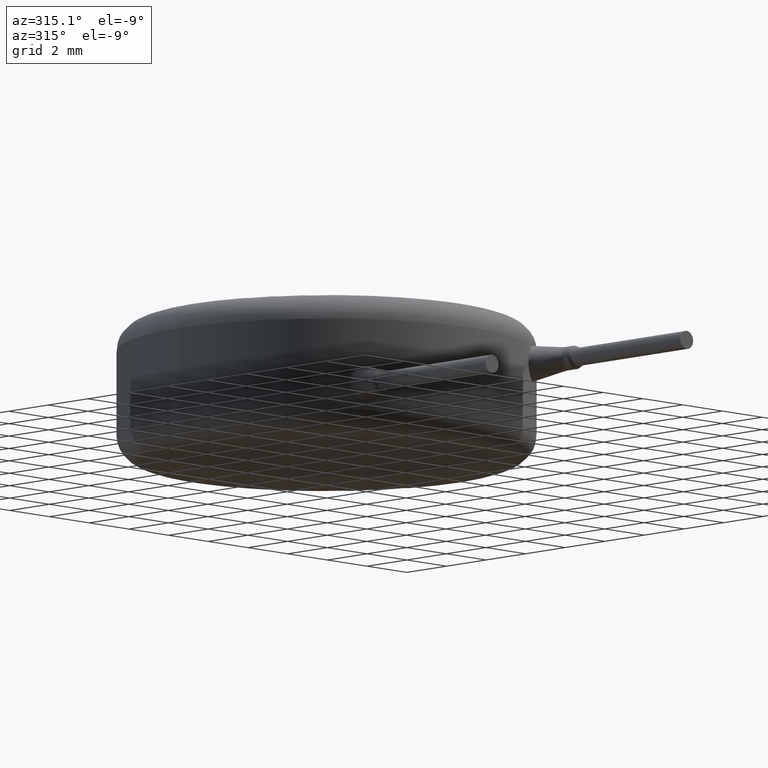
[diagram: clean part render]
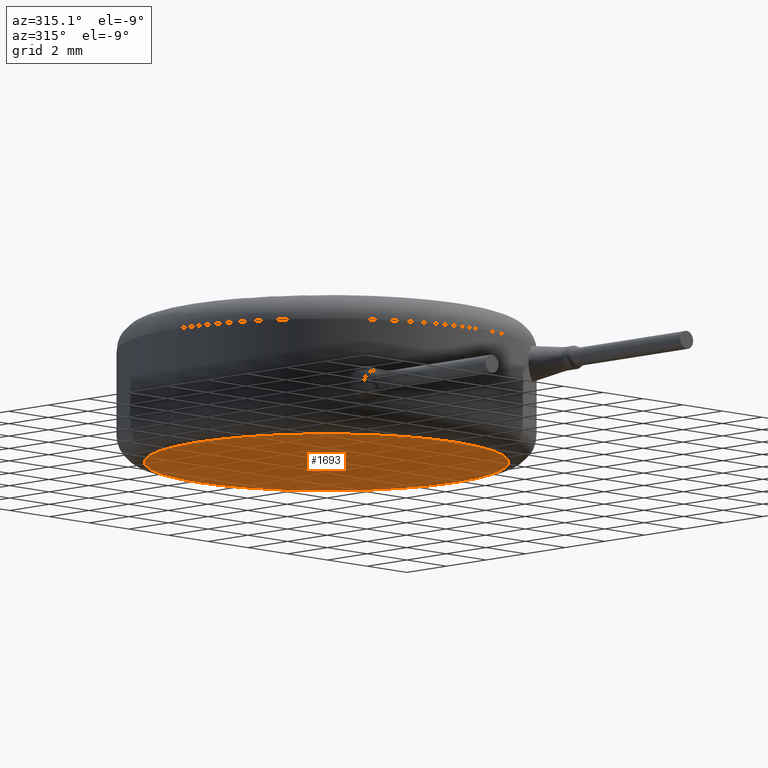
[diagram: same view with one face highlighted and labeled with its STEP entity id]
A machine part, auxiliary view. The second image highlights one B-rep face of the part: STEP entity #1693.
In plain terms, the highlighted planar face has unit normal (0, 0, 1).
Its self-contained STEP definition (entity closure, byte-faithful):
#436 = VERTEX_POINT ( 'NONE', #1327 ) ;
#498 = DIRECTION ( 'NONE',  ( 0.0000000000000000000, 0.0000000000000000000, 1.000000000000000000 ) ) ;
#551 = AXIS2_PLACEMENT_3D ( 'NONE', #1628, #3218, #2221 ) ;
#702 = CIRCLE ( 'NONE', #551, 6.500000000000000000 ) ;
#916 = AXIS2_PLACEMENT_3D ( 'NONE', #1735, #498, #3357 ) ;
#1155 = CIRCLE ( 'NONE', #3882, 6.500000000000000000 ) ;
#1327 = CARTESIAN_POINT ( 'NONE',  ( 6.500000000000000000, 0.0000000000000000000, 0.0000000000000000000 ) ) ;
#1628 = CARTESIAN_POINT ( 'NONE',  ( 0.0000000000000000000, 0.0000000000000000000, 0.0000000000000000000 ) ) ;
#1693 = ADVANCED_FACE ( 'NONE', ( #2270 ), #2416, .F. ) ;
#1735 = CARTESIAN_POINT ( 'NONE',  ( 0.0000000000000000000, 0.0000000000000000000, 0.0000000000000000000 ) ) ;
#1964 = DIRECTION ( 'NONE',  ( 1.000000000000000000, 0.0000000000000000000, 0.0000000000000000000 ) ) ;
#2221 = DIRECTION ( 'NONE',  ( 1.000000000000000000, 0.0000000000000000000, 0.0000000000000000000 ) ) ;
#2270 = FACE_OUTER_BOUND ( 'NONE', #3330, .T. ) ;
#2416 = PLANE ( 'NONE',  #916 ) ;
#2636 = CARTESIAN_POINT ( 'NONE',  ( 0.0000000000000000000, 0.0000000000000000000, 0.0000000000000000000 ) ) ;
#2695 = VERTEX_POINT ( 'NONE', #3819 ) ;
#2784 = EDGE_CURVE ( 'NONE', #436, #2695, #1155, .T. ) ;
#2957 = ORIENTED_EDGE ( 'NONE', *, *, #3171, .T. ) ;
#3171 = EDGE_CURVE ( 'NONE', #2695, #436, #702, .T. ) ;
#3218 = DIRECTION ( 'NONE',  ( -0.0000000000000000000, -0.0000000000000000000, -1.000000000000000000 ) ) ;
#3330 = EDGE_LOOP ( 'NONE', ( #3445, #2957 ) ) ;
#3357 = DIRECTION ( 'NONE',  ( 1.000000000000000000, 0.0000000000000000000, -0.0000000000000000000 ) ) ;
#3445 = ORIENTED_EDGE ( 'NONE', *, *, #2784, .T. ) ;
#3819 = CARTESIAN_POINT ( 'NONE',  ( -6.500000000000000000, 8.572527594031472200E-016, 0.0000000000000000000 ) ) ;
#3882 = AXIS2_PLACEMENT_3D ( 'NONE', #2636, #3953, #1964 ) ;
#3953 = DIRECTION ( 'NONE',  ( -0.0000000000000000000, -0.0000000000000000000, -1.000000000000000000 ) ) ;